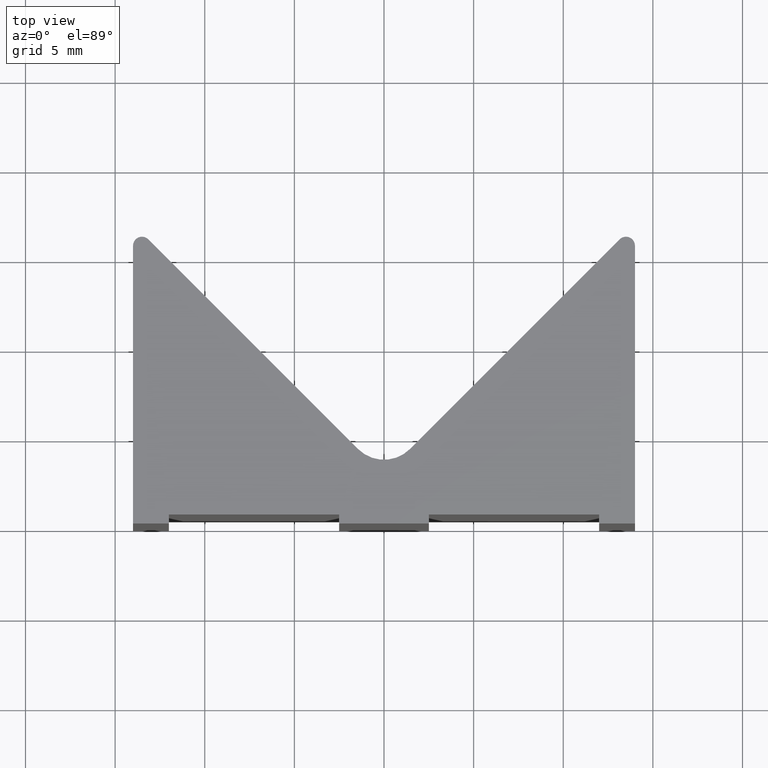
[diagram: clean part render]
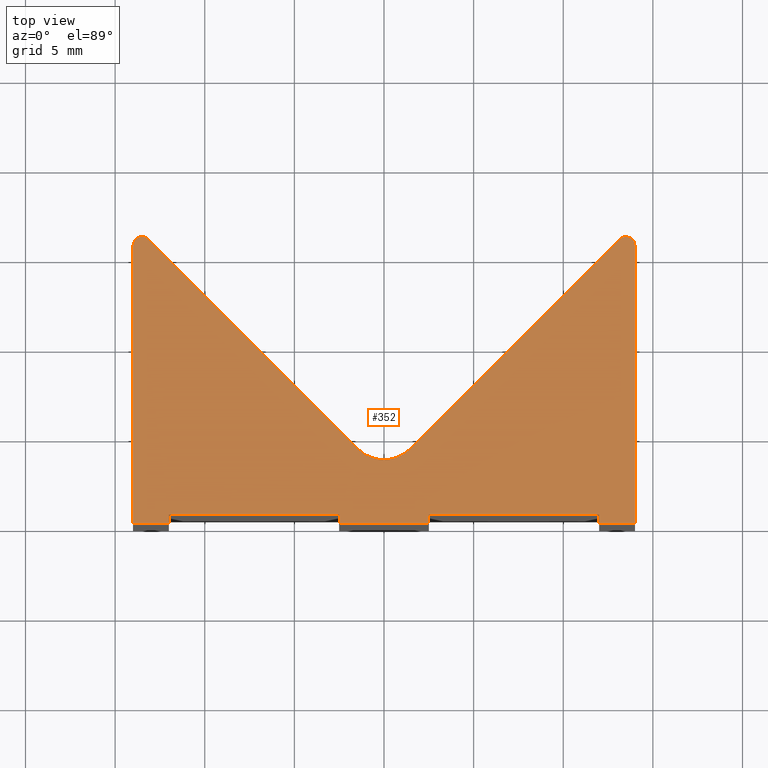
[diagram: same view with one face highlighted and labeled with its STEP entity id]
A machine part, top view. The second image highlights one B-rep face of the part: STEP entity #352.
In plain terms, the highlighted planar face has unit normal (0, 0, 1).
Its self-contained STEP definition (entity closure, byte-faithful):
#35=FACE_OUTER_BOUND('',#53,.T.);
#53=EDGE_LOOP('',(#304,#305,#306,#307,#308,#309,#310,#311,#312,#313,#314,
#315,#316,#317,#318,#319));
#57=CIRCLE('',#390,0.500000000000004);
#58=CIRCLE('',#393,2.04558441227157);
#59=CIRCLE('',#396,0.500000000000003);
#73=LINE('',#529,#115);
#76=LINE('',#534,#118);
#78=LINE('',#538,#120);
#80=LINE('',#542,#122);
#82=LINE('',#546,#124);
#84=LINE('',#550,#126);
#86=LINE('',#554,#128);
#88=LINE('',#558,#130);
#90=LINE('',#562,#132);
#93=LINE('',#570,#135);
#96=LINE('',#578,#138);
#99=LINE('',#586,#141);
#101=LINE('',#589,#143);
#115=VECTOR('',#425,10.);
#118=VECTOR('',#430,10.);
#120=VECTOR('',#434,10.);
#122=VECTOR('',#438,10.);
#124=VECTOR('',#442,10.);
#126=VECTOR('',#446,10.);
#128=VECTOR('',#450,10.);
#130=VECTOR('',#454,10.);
#132=VECTOR('',#458,10.);
#135=VECTOR('',#467,10.);
#138=VECTOR('',#476,10.);
#141=VECTOR('',#485,10.);
#143=VECTOR('',#489,10.);
#160=VERTEX_POINT('',#527);
#161=VERTEX_POINT('',#528);
#162=VERTEX_POINT('',#533);
#163=VERTEX_POINT('',#537);
#164=VERTEX_POINT('',#541);
#165=VERTEX_POINT('',#545);
#166=VERTEX_POINT('',#549);
#167=VERTEX_POINT('',#553);
#168=VERTEX_POINT('',#557);
#169=VERTEX_POINT('',#561);
#170=VERTEX_POINT('',#565);
#171=VERTEX_POINT('',#569);
#172=VERTEX_POINT('',#573);
#173=VERTEX_POINT('',#577);
#174=VERTEX_POINT('',#581);
#175=VERTEX_POINT('',#585);
#192=EDGE_CURVE('',#160,#161,#73,.T.);
#195=EDGE_CURVE('',#161,#162,#76,.T.);
#197=EDGE_CURVE('',#162,#163,#78,.T.);
#199=EDGE_CURVE('',#163,#164,#80,.T.);
#201=EDGE_CURVE('',#164,#165,#82,.T.);
#203=EDGE_CURVE('',#165,#166,#84,.T.);
#205=EDGE_CURVE('',#166,#167,#86,.T.);
#207=EDGE_CURVE('',#167,#168,#88,.T.);
#209=EDGE_CURVE('',#168,#169,#90,.T.);
#211=EDGE_CURVE('',#169,#170,#57,.T.);
#213=EDGE_CURVE('',#170,#171,#93,.T.);
#215=EDGE_CURVE('',#171,#172,#58,.T.);
#217=EDGE_CURVE('',#172,#173,#96,.T.);
#219=EDGE_CURVE('',#173,#174,#59,.T.);
#221=EDGE_CURVE('',#174,#175,#99,.T.);
#223=EDGE_CURVE('',#175,#160,#101,.T.);
#304=ORIENTED_EDGE('',*,*,#192,.F.);
#305=ORIENTED_EDGE('',*,*,#223,.F.);
#306=ORIENTED_EDGE('',*,*,#221,.F.);
#307=ORIENTED_EDGE('',*,*,#219,.F.);
#308=ORIENTED_EDGE('',*,*,#217,.F.);
#309=ORIENTED_EDGE('',*,*,#215,.F.);
#310=ORIENTED_EDGE('',*,*,#213,.F.);
#311=ORIENTED_EDGE('',*,*,#211,.F.);
#312=ORIENTED_EDGE('',*,*,#209,.F.);
#313=ORIENTED_EDGE('',*,*,#207,.F.);
#314=ORIENTED_EDGE('',*,*,#205,.F.);
#315=ORIENTED_EDGE('',*,*,#203,.F.);
#316=ORIENTED_EDGE('',*,*,#201,.F.);
#317=ORIENTED_EDGE('',*,*,#199,.F.);
#318=ORIENTED_EDGE('',*,*,#197,.F.);
#319=ORIENTED_EDGE('',*,*,#195,.F.);
#334=PLANE('',#399);
#352=ADVANCED_FACE('',(#35),#334,.T.);
#390=AXIS2_PLACEMENT_3D('',#566,#462,#463);
#393=AXIS2_PLACEMENT_3D('',#574,#471,#472);
#396=AXIS2_PLACEMENT_3D('',#582,#480,#481);
#399=AXIS2_PLACEMENT_3D('',#590,#490,#491);
#425=DIRECTION('',(0.,1.,0.));
#430=DIRECTION('',(-1.,9.49532850008358E-17,0.));
#434=DIRECTION('',(0.,-1.,0.));
#438=DIRECTION('',(-1.,0.,0.));
#442=DIRECTION('',(0.,1.,0.));
#446=DIRECTION('',(-1.,-9.49532850008358E-17,0.));
#450=DIRECTION('',(0.,-1.,0.));
#454=DIRECTION('',(-1.,0.,0.));
#458=DIRECTION('',(-2.86509167645202E-16,1.,0.));
#462=DIRECTION('center_axis',(0.,0.,-1.));
#463=DIRECTION('ref_axis',(-0.707106781186547,-0.707106781186547,0.));
#467=DIRECTION('',(0.707106781186548,-0.707106781186547,0.));
#471=DIRECTION('center_axis',(0.,0.,1.));
#472=DIRECTION('ref_axis',(-0.707106781186547,-0.707106781186548,0.));
#476=DIRECTION('',(0.707106781186548,0.707106781186547,0.));
#480=DIRECTION('center_axis',(0.,0.,-1.));
#481=DIRECTION('ref_axis',(-1.,0.,0.));
#485=DIRECTION('',(-2.86509167645202E-16,-1.,0.));
#489=DIRECTION('',(-1.,0.,0.));
#490=DIRECTION('center_axis',(0.,0.,1.));
#491=DIRECTION('ref_axis',(1.,0.,0.));
#527=CARTESIAN_POINT('',(12.,0.,12.5));
#528=CARTESIAN_POINT('',(12.,0.5,12.5));
#529=CARTESIAN_POINT('',(12.,0.,12.5));
#533=CARTESIAN_POINT('',(2.5,0.500000000000001,12.5));
#534=CARTESIAN_POINT('',(12.,0.5,12.5));
#537=CARTESIAN_POINT('',(2.5,0.,12.5));
#538=CARTESIAN_POINT('',(2.5,0.500000000000001,12.5));
#541=CARTESIAN_POINT('',(-2.5,0.,12.5));
#542=CARTESIAN_POINT('',(2.5,0.,12.5));
#545=CARTESIAN_POINT('',(-2.5,0.500000000000001,12.5));
#546=CARTESIAN_POINT('',(-2.5,0.,12.5));
#549=CARTESIAN_POINT('',(-12.,0.5,12.5));
#550=CARTESIAN_POINT('',(-2.5,0.500000000000001,12.5));
#553=CARTESIAN_POINT('',(-12.,0.,12.5));
#554=CARTESIAN_POINT('',(-12.,0.5,12.5));
#557=CARTESIAN_POINT('',(-14.,0.,12.5));
#558=CARTESIAN_POINT('',(-12.,0.,12.5));
#561=CARTESIAN_POINT('',(-14.,15.5,12.5));
#562=CARTESIAN_POINT('',(-14.,0.,12.5));
#565=CARTESIAN_POINT('',(-13.1464466094067,15.8535533905933,12.5));
#566=CARTESIAN_POINT('Origin',(-13.5,15.5,12.5));
#569=CARTESIAN_POINT('',(-1.44644660940672,4.15355339059328,12.5));
#570=CARTESIAN_POINT('',(-13.1464466094067,15.8535533905933,12.5));
#573=CARTESIAN_POINT('',(1.44644660940672,4.15355339059328,12.5));
#574=CARTESIAN_POINT('Origin',(0.,5.6,12.5));
#577=CARTESIAN_POINT('',(13.1464466094067,15.8535533905933,12.5));
#578=CARTESIAN_POINT('',(1.44644660940672,4.15355339059328,12.5));
#581=CARTESIAN_POINT('',(14.,15.5,12.5));
#582=CARTESIAN_POINT('Origin',(13.5,15.5,12.5));
#585=CARTESIAN_POINT('',(14.,0.,12.5));
#586=CARTESIAN_POINT('',(14.,15.5,12.5));
#589=CARTESIAN_POINT('',(14.,0.,12.5));
#590=CARTESIAN_POINT('Origin',(-1.04083408558608E-16,6.32967069798019,12.5));